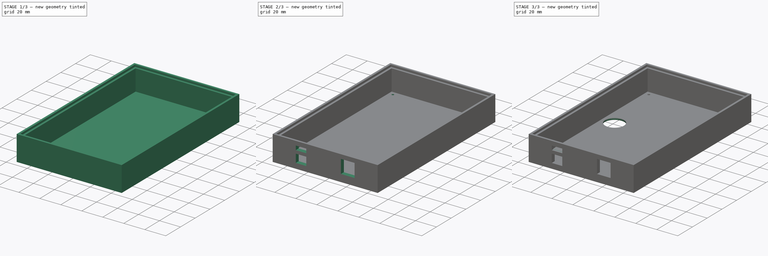
[diagram: build sequence overview — one tinted view per stage of 3, left to right]
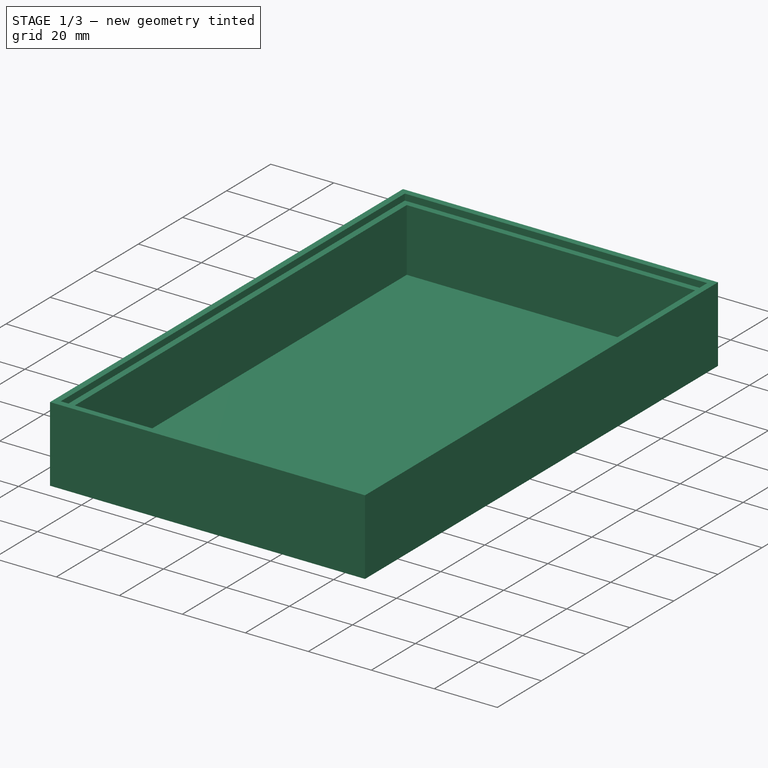
[diagram: stage 1 of 3 — iso view after this stage's code; geometry added in this stage tinted green]
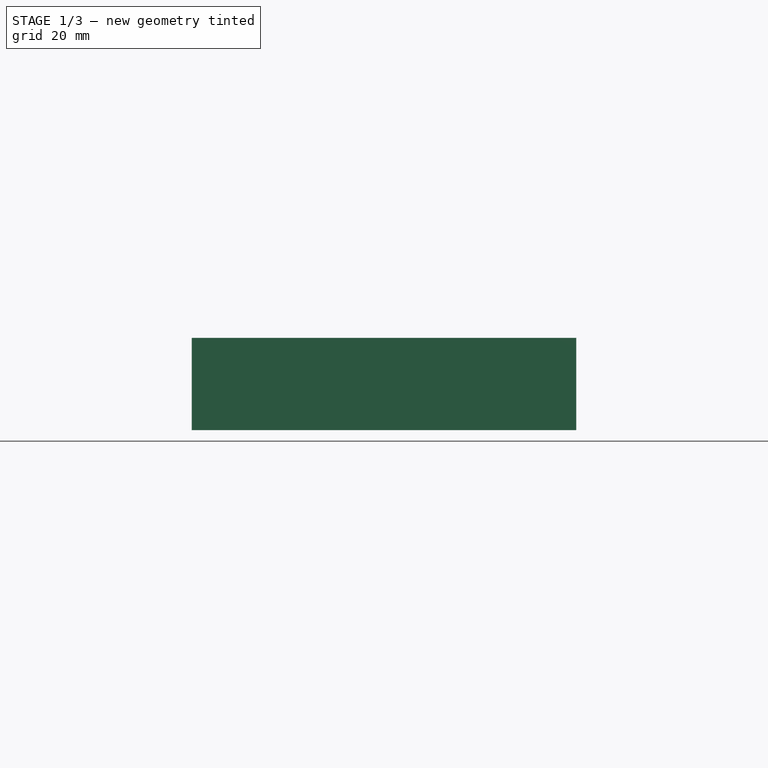
[diagram: stage 1 of 3 — front view after this stage's code; geometry added in this stage tinted green]
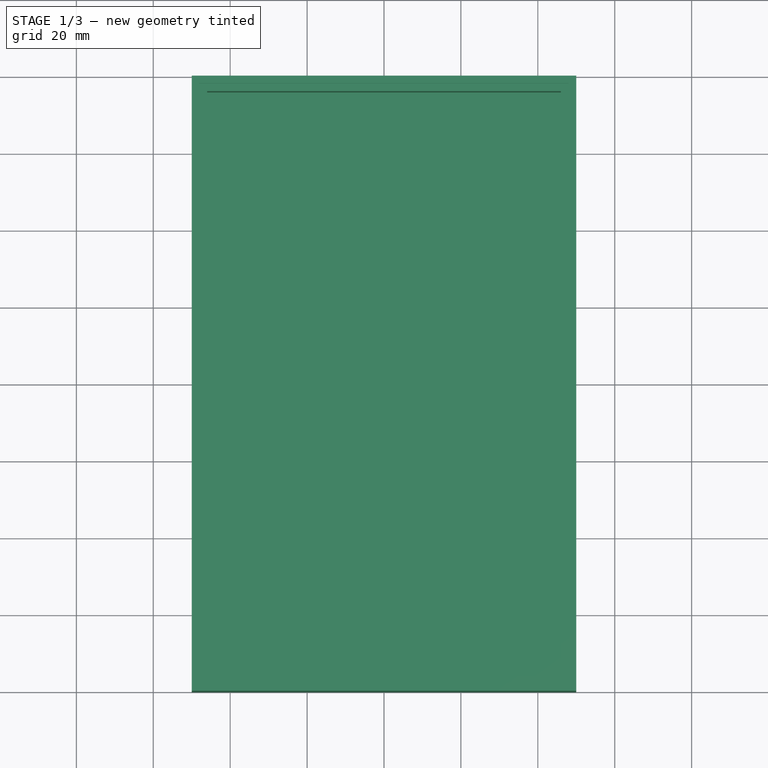
[diagram: stage 1 of 3 — top view after this stage's code; geometry added in this stage tinted green]
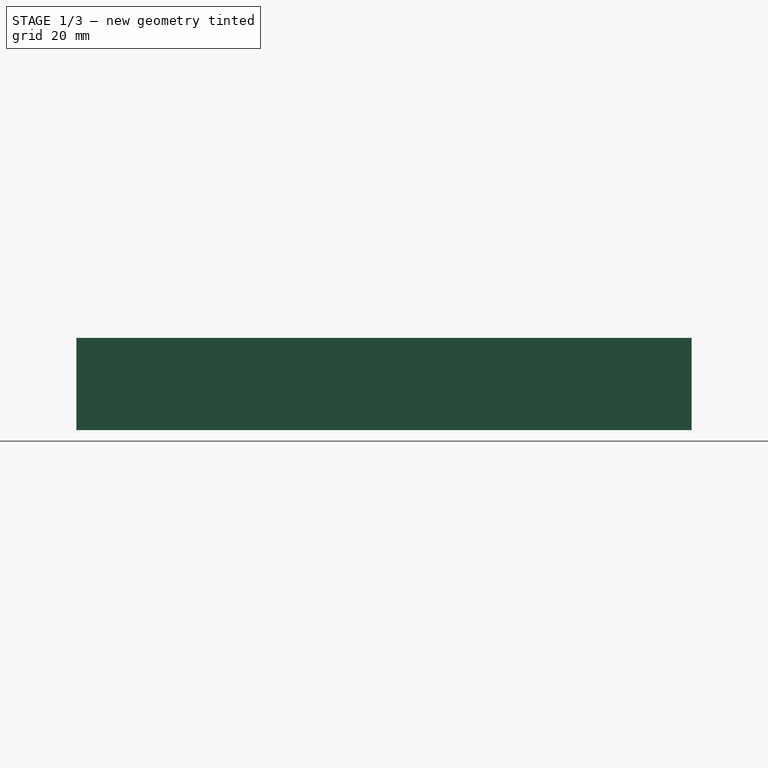
[diagram: stage 1 of 3 — right view after this stage's code; geometry added in this stage tinted green]
FCSTD DOCUMENT  (FreeCAD 0.19R24291 (Git))
Label: trueimage_10button_top_new
License: All rights reserved
LicenseURL: http://en.wikipedia.org/wiki/All_rights_reserved
objects: Sketcher::SketchObject×8, PartDesign::Pocket×6, PartDesign::Pad×1, PartDesign::Fillet×1, PartDesign::Body×1
note: 25 computed .brp shape members not serialized (recipe doc carries the construction recipe); baked Part::Feature solids carry a one-line shape summary decoded from their .brp

FEATURE [Sketcher::SketchObject] Sketch
  FullyConstrained = true
  MapMode = 5
  Support = -> [XY_Plane]
  sketch-geometry (4):
    g0: LineSegment StartX=50 StartY=80 StartZ=0 EndX=-50 EndY=80 EndZ=0
    g1: LineSegment StartX=-50 StartY=80 StartZ=0 EndX=-50 EndY=-80 EndZ=0
    g2: LineSegment StartX=-50 StartY=-80 StartZ=0 EndX=50 EndY=-80 EndZ=0
    g3: LineSegment StartX=50 StartY=-80 StartZ=0 EndX=50 EndY=80 EndZ=0
  constraints (10):
    c: Coincident(g0,g1)
    c: Coincident(g1,g2)
    c: Coincident(g2,g3)
    c: Coincident(g3,g0)
    c: Horizontal(g0)
    c: Vertical(g1)
    c: DistanceX(g0,g0) = 100
    c: DistanceY(g3,g3) = 160
    c: Symmetric(g0,g2,g-1)
    c: Symmetric(g2,g1,g-2)
FEATURE [PartDesign::Pad] Pad
  Direction = (1,1,1)
  Length = 24
  Length2 = 100
  Profile = -> Sketch
  Refine = true
  Type = 0
FEATURE [Sketcher::SketchObject] Sketch001
  AttachmentOffset = pos=(0,0,24) rot=(0,0,1;0rad)
  FullyConstrained = true
  MapMode = 5
  Placement = pos=(0,0,24) rot=(0,0,1;0rad)
  Support = -> [XY_Plane]
  sketch-geometry (4):
    g0: LineSegment StartX=-48 StartY=78 StartZ=0 EndX=48 EndY=78 EndZ=0
    g1: LineSegment StartX=48 StartY=78 StartZ=0 EndX=48 EndY=-78 EndZ=0
    g2: LineSegment StartX=48 StartY=-78 StartZ=0 EndX=-48 EndY=-78 EndZ=0
    g3: LineSegment StartX=-48 StartY=-78 StartZ=0 EndX=-48 EndY=78 EndZ=0
  constraints (10):
    c: Coincident(g0,g1)
    c: Coincident(g1,g2)
    c: Coincident(g2,g3)
    c: Coincident(g3,g0)
    c: Horizontal(g2)
    c: Vertical(g3)
    c: DistanceY(g1,g1) = 156
    c: DistanceX(g0,g0) = 96
    c: Symmetric(g0,g0,g-2)
    c: Symmetric(g0,g1,g-1)
FEATURE [PartDesign::Pocket] Pocket
  BaseFeature = -> Pad
  Length = 2
  Length2 = 100
  Profile = -> Sketch001
  Refine = true
  Type = 0
FEATURE [Sketcher::SketchObject] Sketch002
  AttachmentOffset = pos=(0,0,24) rot=(0,0,1;0rad)
  FullyConstrained = true
  MapMode = 5
  Placement = pos=(0,0,24) rot=(0,0,1;0rad)
  Support = -> [XY_Plane]
  sketch-geometry (4):
    g0: LineSegment StartX=-46 StartY=76 StartZ=0 EndX=46 EndY=76 EndZ=0
    g1: LineSegment StartX=46 StartY=76 StartZ=0 EndX=46 EndY=-76 EndZ=0
    g2: LineSegment StartX=46 StartY=-76 StartZ=0 EndX=-46 EndY=-76 EndZ=0
    g3: LineSegment StartX=-46 StartY=-76 StartZ=0 EndX=-46 EndY=76 EndZ=0
  constraints (10):
    c: Coincident(g0,g1)
    c: Coincident(g1,g2)
    c: Coincident(g2,g3)
    c: Coincident(g3,g0)
    c: Horizontal(g0)
    c: Vertical(g1)
    c: DistanceY(g1,g1) = 152
    c: DistanceX(g0,g0) = 92
    c: Symmetric(g1,g2,g-2)
    c: Symmetric(g0,g2,g-1)
FEATURE [PartDesign::Pocket] Pocket001
  BaseFeature = -> Pocket
  Length = 22
  Length2 = 100
  Profile = -> Sketch002
  Refine = true
  Type = 0
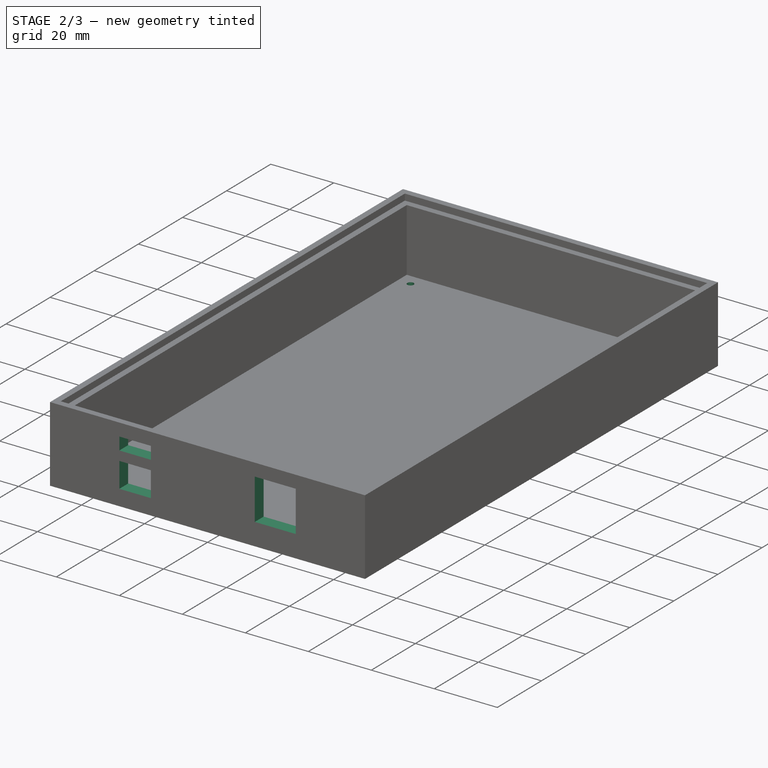
[diagram: stage 2 of 3 — iso view after this stage's code; geometry added in this stage tinted green]
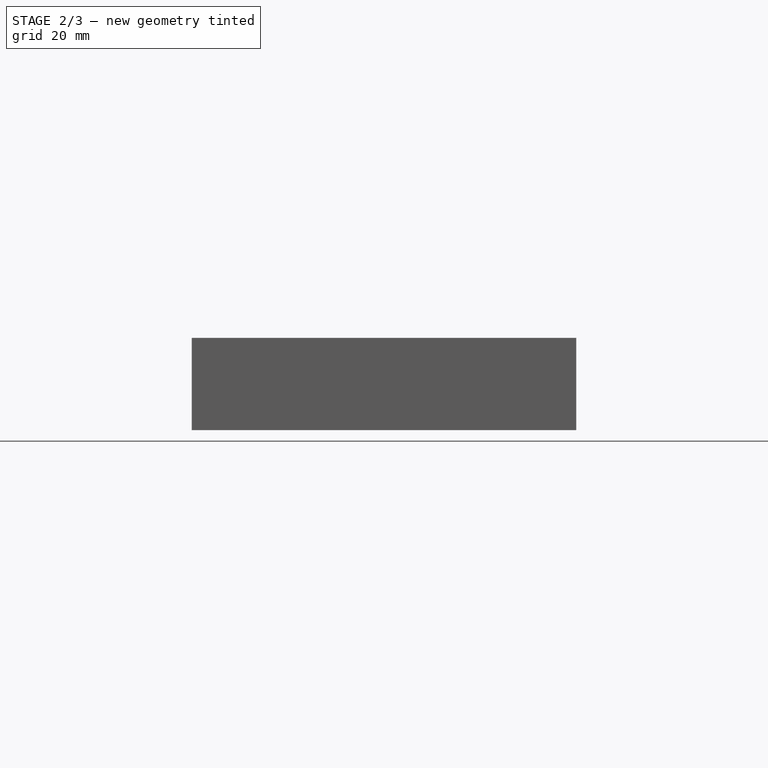
[diagram: stage 2 of 3 — front view after this stage's code; geometry added in this stage tinted green]
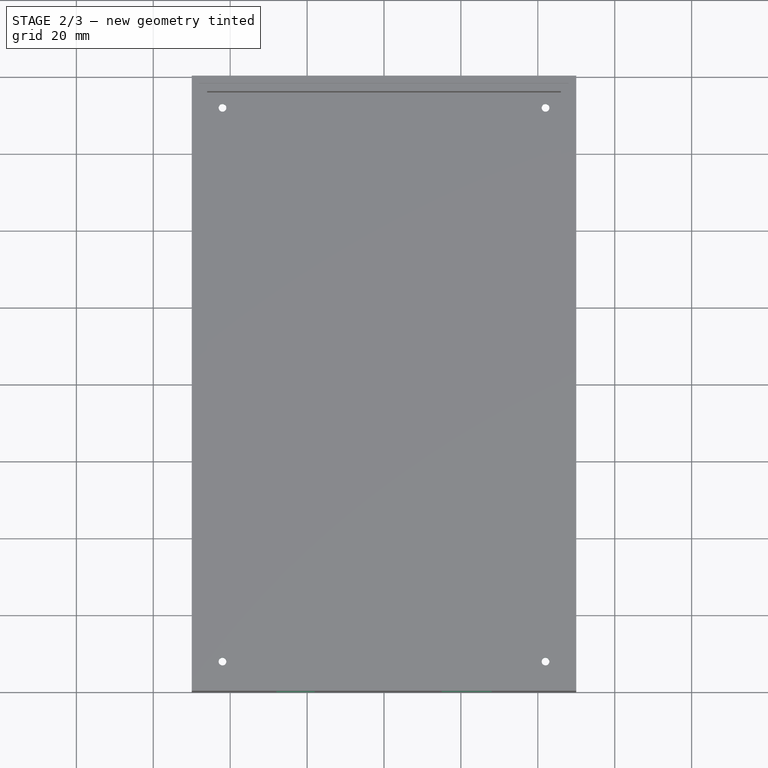
[diagram: stage 2 of 3 — top view after this stage's code; geometry added in this stage tinted green]
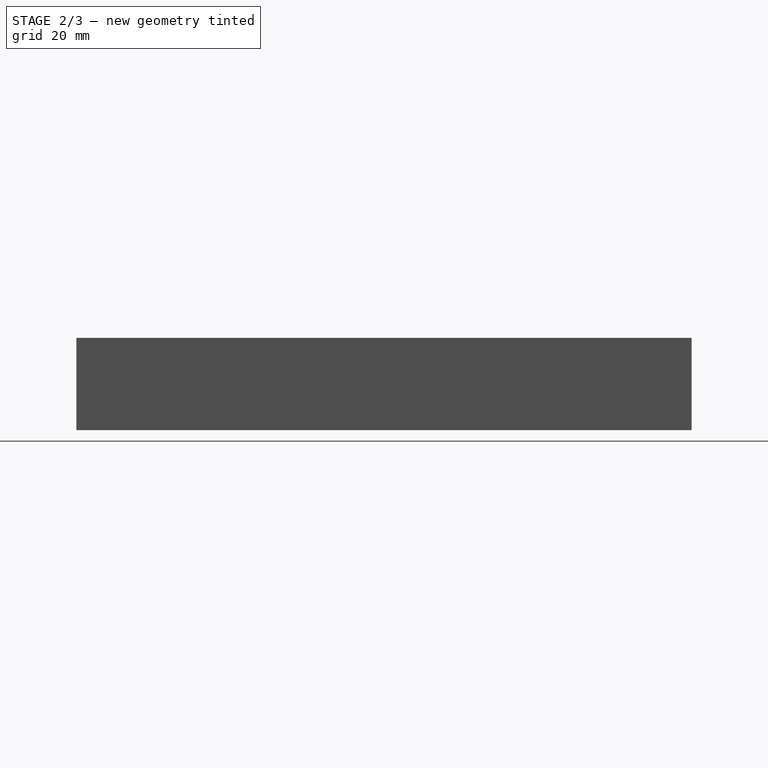
[diagram: stage 2 of 3 — right view after this stage's code; geometry added in this stage tinted green]
FEATURE [Sketcher::SketchObject] Sketch003
  FullyConstrained = true
  MapMode = 5
  sketch-geometry (4):
    g0: Circle CenterX=42 CenterY=72 CenterZ=0 NormalX=0 NormalY=0 NormalZ=1 AngleXU=0 Radius=1
    g1: Circle CenterX=-42 CenterY=72 CenterZ=0 NormalX=0 NormalY=0 NormalZ=1 AngleXU=0 Radius=1
    g2: Circle CenterX=42 CenterY=-72 CenterZ=0 NormalX=0 NormalY=0 NormalZ=1 AngleXU=0 Radius=1
    g3: Circle CenterX=-42 CenterY=-72 CenterZ=0 NormalX=0 NormalY=0 NormalZ=1 AngleXU=0 Radius=1
  constraints (10):
    c: Radius(g0) = 1
    c: Radius(g1) = 1
    c: DistanceX(g1,g0) = 84
    c: Symmetric(g2,g3,g-2)
    c: Symmetric(g2,g0,g-1)
    c: Horizontal(g0,g1)
    c: Vertical(g1,g3)
    c: Equal(g3,g2)
    c: Equal(g2,g0)
    c: DistanceY(g2,g0) = 144
FEATURE [PartDesign::Pocket] Pocket002  label="scew_hole"
  BaseFeature = -> Pocket001
  Length = 5
  Length2 = 100
  Profile = -> Sketch003
  Refine = true
  Reversed = true
  Type = 1
FEATURE [Sketcher::SketchObject] Sketch004
  AttachmentOffset = pos=(0,0,80) rot=(0,0,1;0rad)
  ExternalGeometry = -> [Pocket002]
  FullyConstrained = true
  MapMode = 5
  Placement = pos=(0,-80,1.78e-14) rot=(1,0,0;1.5708rad)
  Support = -> [XZ_Plane]
  sketch-geometry (12):
    g0: LineSegment StartX=15 StartY=20 StartZ=0 EndX=28 EndY=20 EndZ=0
    g1: LineSegment StartX=28 StartY=20 StartZ=0 EndX=28 EndY=7 EndZ=0
    g2: LineSegment StartX=28 StartY=7 StartZ=0 EndX=15 EndY=7 EndZ=0
    g3: LineSegment StartX=15 StartY=7 StartZ=0 EndX=15 EndY=20 EndZ=0
    g4: LineSegment StartX=-28 StartY=20 StartZ=0 EndX=-18 EndY=20 EndZ=0
    g5: LineSegment StartX=-18 StartY=20 StartZ=0 EndX=-18 EndY=16 EndZ=0
    g6: LineSegment StartX=-18 StartY=16 StartZ=0 EndX=-28 EndY=16 EndZ=0
    g7: LineSegment StartX=-28 StartY=16 StartZ=0 EndX=-28 EndY=20 EndZ=0
    g8: LineSegment StartX=-28 StartY=13 StartZ=0 EndX=-18 EndY=13 EndZ=0
    g9: LineSegment StartX=-18 StartY=13 StartZ=0 EndX=-18 EndY=5 EndZ=0
    g10: LineSegment StartX=-18 StartY=5 StartZ=0 EndX=-28 EndY=5 EndZ=0
    g11: LineSegment StartX=-28 StartY=5 StartZ=0 EndX=-28 EndY=13 EndZ=0
  constraints (36):
    c: Coincident(g0,g1)
    c: Coincident(g1,g2)
    c: Coincident(g2,g3)
    c: Coincident(g3,g0)
    c: Horizontal(g0)
    c: Horizontal(g2)
    c: Vertical(g1)
    c: Vertical(g3)
    c: DistanceX(g0,g0) = 13
    c: Equal(g0,g1)
    c: Coincident(g4,g5)
    c: Coincident(g5,g6)
    c: Coincident(g6,g7)
    c: Coincident(g7,g4)
    c: Horizontal(g4)
    c: Horizontal(g6)
    c: Vertical(g5)
    c: Vertical(g7)
    c: DistanceX(g4,g4) = 10
    c: DistanceY(g5,g5) = 4
    c: DistanceY(g-3,g0) = 18
    c: DistanceY(g-3,g4) = 18
    c: Coincident(g8,g9)
    c: Coincident(g9,g10)
    c: Coincident(g10,g11)
    c: Coincident(g11,g8)
    c: Horizontal(g8)
    c: Horizontal(g10)
    c: Vertical(g9)
    c: Vertical(g11)
    c: DistanceY(g9,g9) = 8
    c: DistanceX(g8,g8) = 10
    c: DistanceY(g-3,g9) = 3
    c: DistanceX(g1,g-3) = 18
    c: DistanceX(g-3,g10) = 18
    c: DistanceX(g-3,g6) = 18
FEATURE [PartDesign::Pocket] Pocket003  label="connect_hole"
  BaseFeature = -> Pocket002
  Length = 10
  Length2 = 100
  Profile = -> Sketch004
  Refine = true
  Type = 0
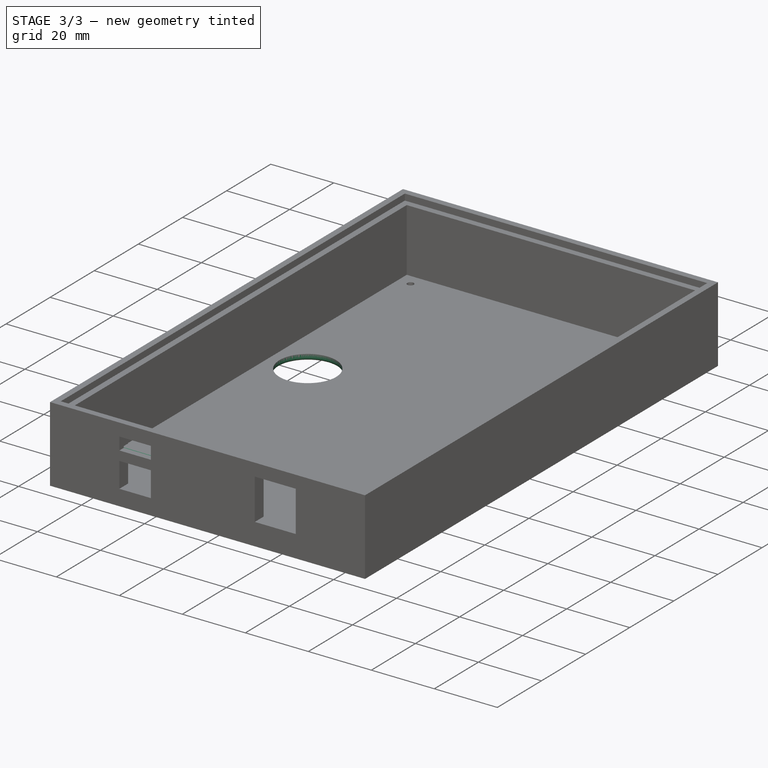
[diagram: stage 3 of 3 — iso view after this stage's code; geometry added in this stage tinted green]
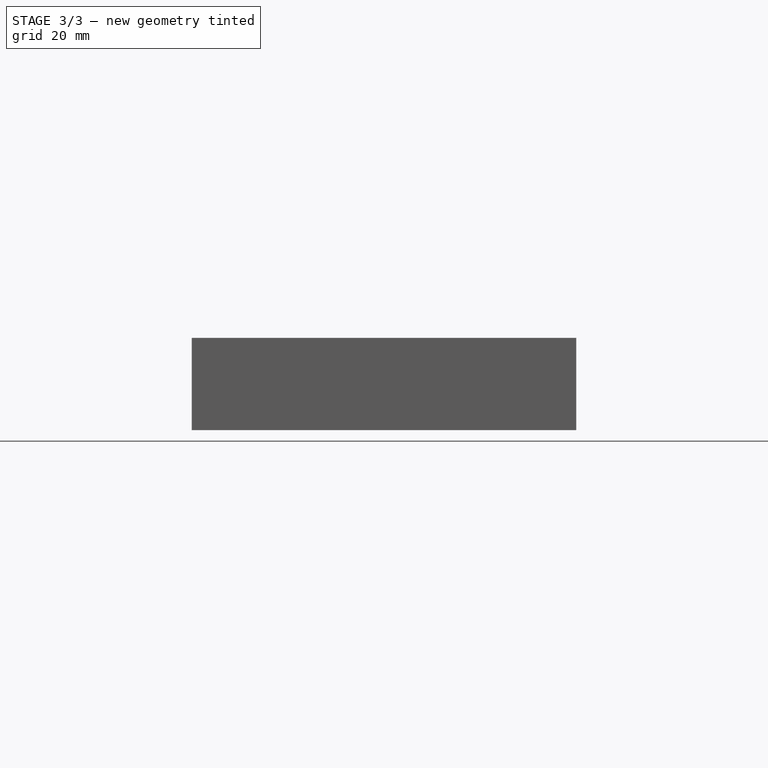
[diagram: stage 3 of 3 — front view after this stage's code; geometry added in this stage tinted green]
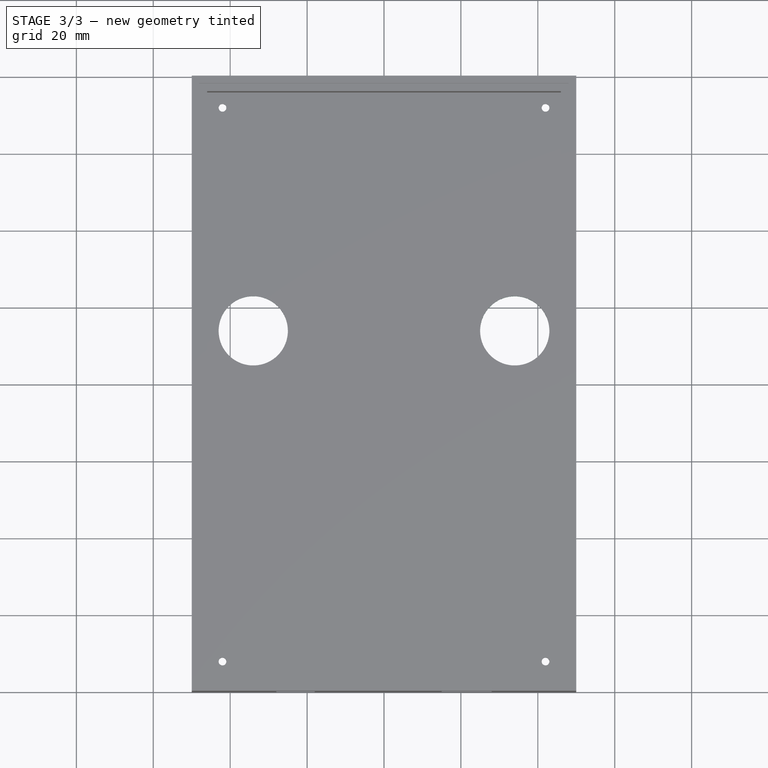
[diagram: stage 3 of 3 — top view after this stage's code; geometry added in this stage tinted green]
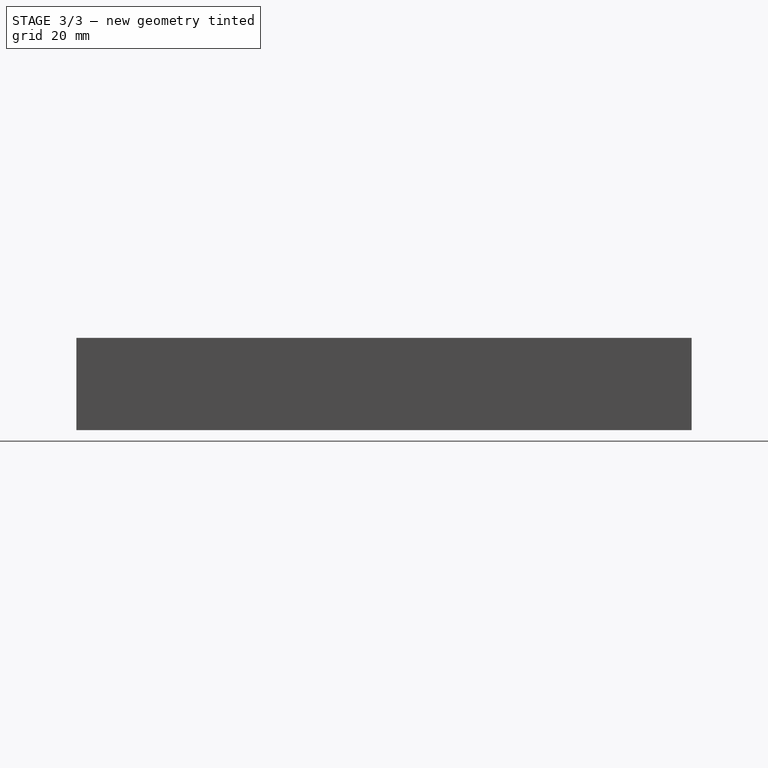
[diagram: stage 3 of 3 — right view after this stage's code; geometry added in this stage tinted green]
FEATURE [Sketcher::SketchObject] Sketch005
  AttachmentOffset = pos=(0,0,76) rot=(0,0,1;0rad)
  ExternalGeometry = -> [Pocket003]
  FullyConstrained = true
  MapMode = 5
  Placement = pos=(0,-76,1.69e-14) rot=(1,0,0;1.5708rad)
  Support = -> [XZ_Plane]
  sketch-geometry (4):
    g0: LineSegment StartX=-32 StartY=16.5 StartZ=0 EndX=-14 EndY=16.5 EndZ=0
    g1: LineSegment StartX=-14 StartY=16.5 StartZ=0 EndX=-14 EndY=15 EndZ=0
    g2: LineSegment StartX=-14 StartY=15 StartZ=0 EndX=-32 EndY=15 EndZ=0
    g3: LineSegment StartX=-32 StartY=15 StartZ=0 EndX=-32 EndY=16.5 EndZ=0
  constraints (12):
    c: Coincident(g0,g1)
    c: Coincident(g1,g2)
    c: Coincident(g2,g3)
    c: Coincident(g3,g0)
    c: Horizontal(g0)
    c: Horizontal(g2)
    c: Vertical(g1)
    c: Vertical(g3)
    c: DistanceY(g1,g1) = 1.5
    c: DistanceX(g0,g0) = 18
    c: DistanceY(g1,g-3) = 1
    c: DistanceX(g-3,g1) = 4
FEATURE [PartDesign::Pocket] Pocket004
  BaseFeature = -> Pocket003
  Length = 2
  Length2 = 100
  Profile = -> Sketch005
  Refine = true
  Reversed = true
  Type = 0
FEATURE [Sketcher::SketchObject] Sketch006
  FullyConstrained = false
  MapMode = 5
  Support = -> [XY_Plane]
  sketch-geometry (4):
    g0: LineSegment StartX=-48 StartY=78 StartZ=0 EndX=48 EndY=78 EndZ=0
    g1: LineSegment StartX=48 StartY=78 StartZ=0 EndX=48 EndY=-78 EndZ=0
    g2: LineSegment StartX=48 StartY=-78 StartZ=0 EndX=-48 EndY=-78 EndZ=0
    g3: LineSegment StartX=-48 StartY=-78 StartZ=0 EndX=-48 EndY=78 EndZ=0
  constraints (8):
    c: Coincident(g0,g1)
    c: Coincident(g1,g2)
    c: Coincident(g2,g3)
    c: Coincident(g3,g0)
    c: Horizontal(g2)
    c: Vertical(g3)
    c: Symmetric(g0,g0,g-2)
    c: Symmetric(g0,g1,g-1)
FEATURE [Sketcher::SketchObject] Sketch007
  ExternalGeometry = -> [Pocket004]
  FullyConstrained = true
  MapMode = 5
  sketch-geometry (2):
    g0: Circle CenterX=34 CenterY=14 CenterZ=0 NormalX=0 NormalY=0 NormalZ=1 AngleXU=0 Radius=9
    g1: Circle CenterX=-34 CenterY=14 CenterZ=0 NormalX=0 NormalY=0 NormalZ=1 AngleXU=0 Radius=9
  constraints (6):
    c: Radius(g0) = 9
    c: Radius(g1) = 9
    c: DistanceY(g0,g-3) = 66
    c: DistanceY(g1,g-4) = 66
    c: DistanceX(g0,g-3) = 16
    c: DistanceX(g-4,g1) = 16
FEATURE [PartDesign::Pocket] Pocket005
  BaseFeature = -> Pocket004
  Length = 5
  Length2 = 100
  Profile = -> Sketch007
  Refine = true
  Reversed = true
  Type = 0
FEATURE [PartDesign::Fillet] Fillet
  Base = -> Pocket005 [Edge14]
  BaseFeature = -> Pocket005
  Radius = 1
  Refine = true
  SupportTransform = false
FEATURE [PartDesign::Body] Body
  Group = -> [Sketch,Pad,Sketch001,Pocket,Sketch002,Pocket001,Sketch003,Pocket002,Sketch004,Pocket003,Sketch005,Pocket004,Sketch006,Sketch007,Pocket005,Fillet]
  Origin = -> Origin
  Tip = -> Fillet
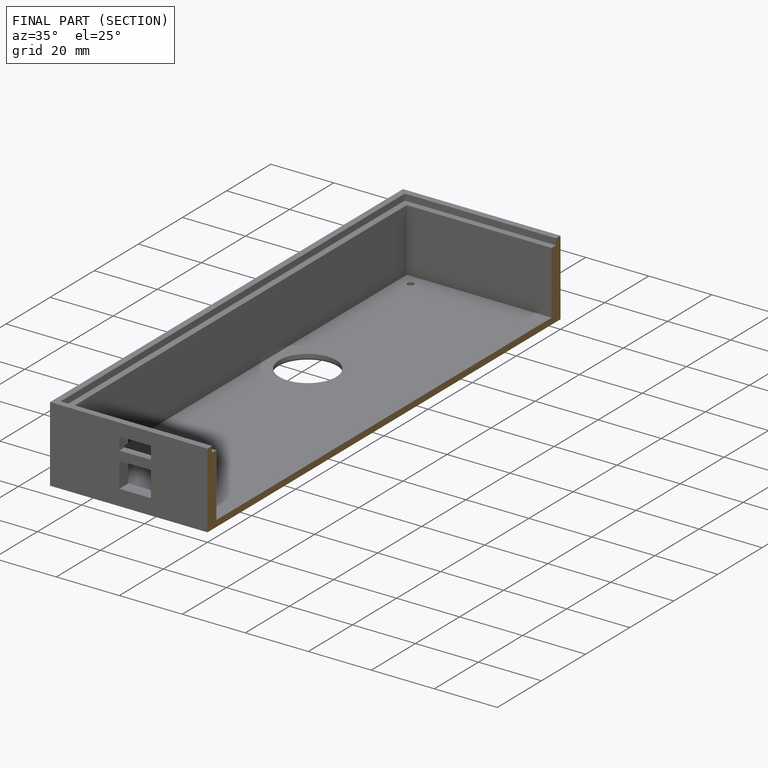
[diagram: finished part — half-section view (interior)]
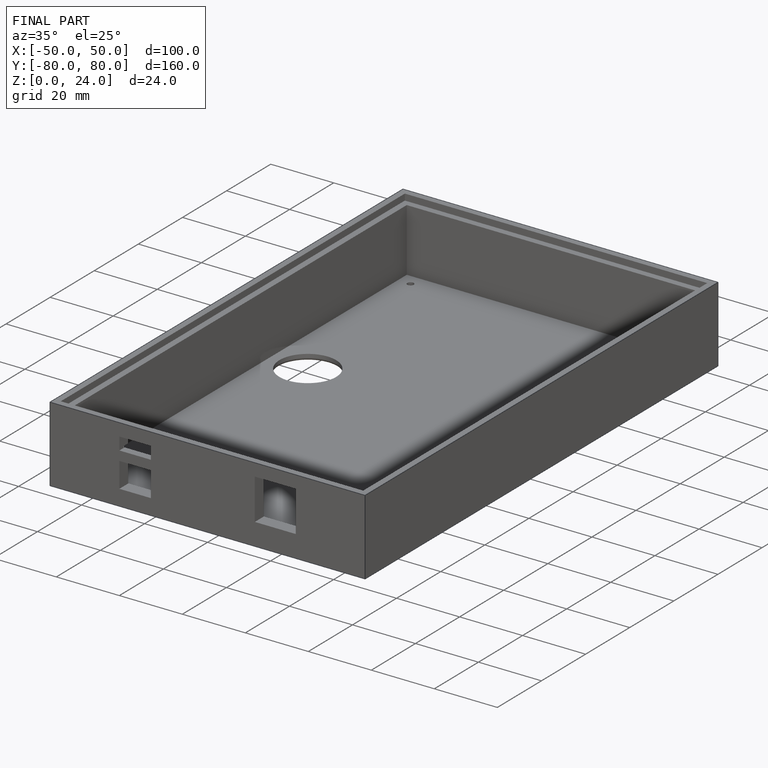
[diagram: finished part — iso view with bounding-box wireframe]
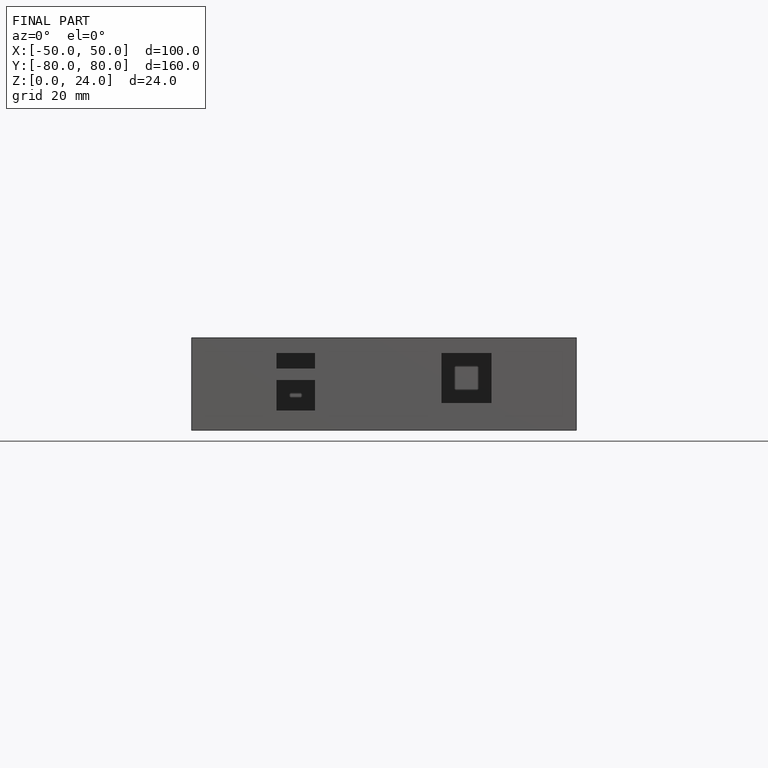
[diagram: finished part — front view with bounding-box wireframe]
